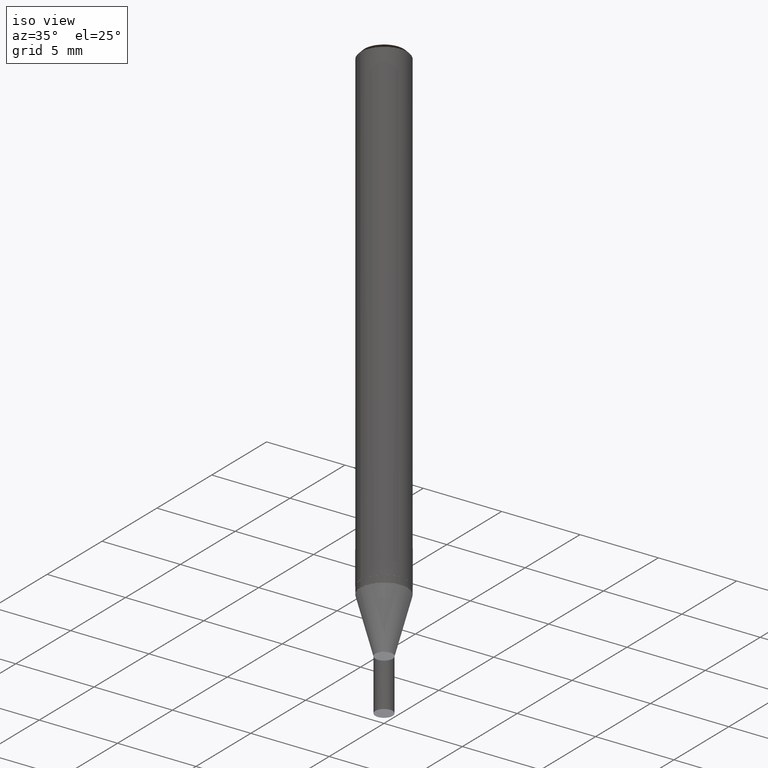
[diagram: clean part render]
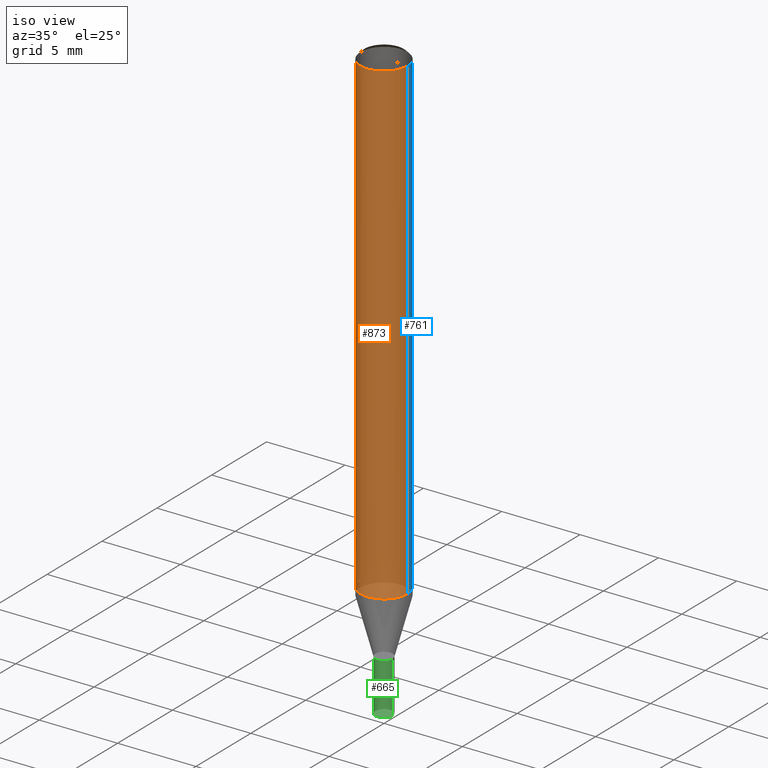
[diagram: same view with three faces highlighted in distinct colors, each labeled with its STEP entity id]
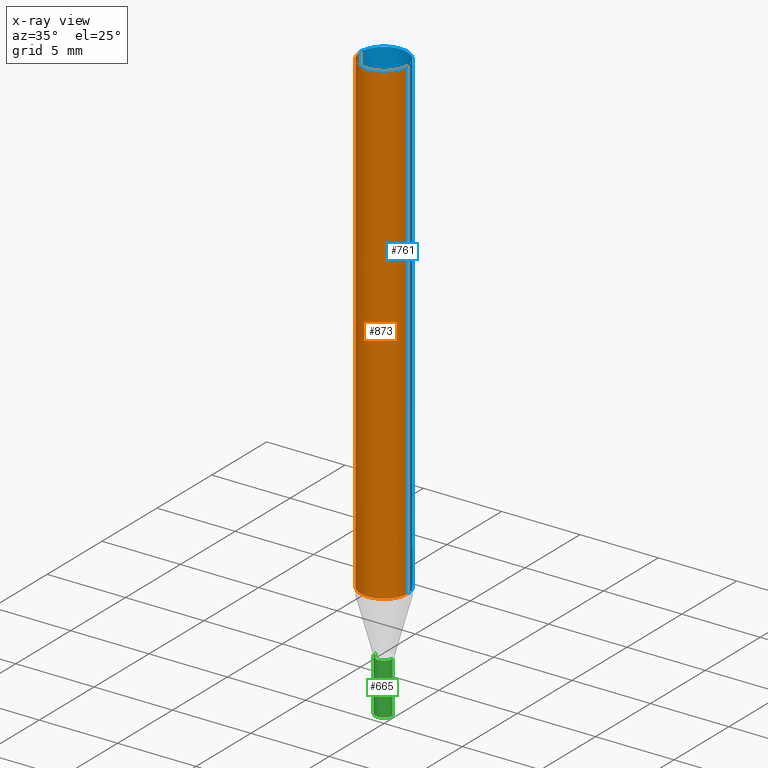
[diagram: x-ray of the same camera — body ghosted, the three highlighted faces saturated]
A machine part, iso view with three faces highlighted in distinct colors.
The next image is the same camera in x-ray (body ghosted, the three faces saturated) — at least one of them is partly hidden behind the body in this view.
Their STEP definitions:

[orange] entity #873 — the highlighted face is a freeform B-spline surface patch.
#543=CARTESIAN_POINT('',(1.5,0.0,-0.0));
#547=CARTESIAN_POINT('',(-1.5,0.0,-0.0));
#548=CARTESIAN_POINT('',(1.5,0.0,30.45));
#552=CARTESIAN_POINT('',(-1.5,0.0,30.45));
#562=CARTESIAN_POINT('',(-1.5,-1.5,-0.0));
#563=CARTESIAN_POINT('',(0.0,-1.5,-0.0));
#564=CARTESIAN_POINT('',(1.5,-1.5,-0.0));
#565=CARTESIAN_POINT('',(-1.5,-1.5,30.45));
#566=CARTESIAN_POINT('',(0.0,-1.5,30.45));
#567=CARTESIAN_POINT('',(1.5,-1.5,30.45));
#854=(
BOUNDED_SURFACE()
B_SPLINE_SURFACE(1,2,(
(#547,#562,#563,#564,#543),
(#552,#565,#566,#567,#548)
), .UNSPECIFIED.,.F.,.F.,.F.)
B_SPLINE_SURFACE_WITH_KNOTS((2,2),(3,2,3),(
0.0,1.0),(
0.0,0.5,1.0), .UNSPECIFIED.)
GEOMETRIC_REPRESENTATION_ITEM()
RATIONAL_B_SPLINE_SURFACE(((1.0,0.707106781187,1.0,0.707106781187,1.0),
(1.0,0.707106781187,1.0,0.707106781187,1.0)
))
REPRESENTATION_ITEM('')
SURFACE()
);
#855=(
BOUNDED_CURVE()
B_SPLINE_CURVE(2,(#543,#564,#563,#562,#547),.UNSPECIFIED.,.F.,.F.)
B_SPLINE_CURVE_WITH_KNOTS((3,2,3),
(0.0,0.5,1.0),.UNSPECIFIED.)
CURVE()
GEOMETRIC_REPRESENTATION_ITEM()
RATIONAL_B_SPLINE_CURVE((1.0,0.707106781187,1.0,0.707106781187,1.0))
REPRESENTATION_ITEM('')
);
#856=(
BOUNDED_CURVE()
B_SPLINE_CURVE(1,(#547,#552),.UNSPECIFIED.,.F.,.F.)
B_SPLINE_CURVE_WITH_KNOTS((2,2),
(0.0,1.0),.UNSPECIFIED.)
CURVE()
GEOMETRIC_REPRESENTATION_ITEM()
RATIONAL_B_SPLINE_CURVE((1.0,1.0))
REPRESENTATION_ITEM('')
);
#857=(
BOUNDED_CURVE()
B_SPLINE_CURVE(2,(#552,#565,#566,#567,#548),.UNSPECIFIED.,.F.,.F.)
B_SPLINE_CURVE_WITH_KNOTS((3,2,3),
(0.0,0.5,1.0),.UNSPECIFIED.)
CURVE()
GEOMETRIC_REPRESENTATION_ITEM()
RATIONAL_B_SPLINE_CURVE((1.0,0.707106781187,1.0,0.707106781187,1.0))
REPRESENTATION_ITEM('')
);
#858=(
BOUNDED_CURVE()
B_SPLINE_CURVE(1,(#548,#543),.UNSPECIFIED.,.F.,.F.)
B_SPLINE_CURVE_WITH_KNOTS((2,2),
(0.0,1.0),.UNSPECIFIED.)
CURVE()
GEOMETRIC_REPRESENTATION_ITEM()
RATIONAL_B_SPLINE_CURVE((1.0,1.0))
REPRESENTATION_ITEM('')
);
#859=VERTEX_POINT('',#543);
#860=VERTEX_POINT('',#547);
#861=VERTEX_POINT('',#548);
#862=VERTEX_POINT('',#552);
#863=EDGE_CURVE('',#859,#860,#855,.T.);
#864=EDGE_CURVE('',#860,#862,#856,.T.);
#865=EDGE_CURVE('',#862,#861,#857,.T.);
#866=EDGE_CURVE('',#861,#859,#858,.T.);
#867=ORIENTED_EDGE('',*,*,#863,.T.);
#868=ORIENTED_EDGE('',*,*,#864,.T.);
#869=ORIENTED_EDGE('',*,*,#865,.T.);
#870=ORIENTED_EDGE('',*,*,#866,.T.);
#871=EDGE_LOOP('',(#867,#868,#869,#870));
#872=FACE_OUTER_BOUND('',#871,.T.);
#873=ADVANCED_FACE('',(#872),#854,.T.);

[blue] entity #761 — the highlighted face is a freeform B-spline surface patch.
#543=CARTESIAN_POINT('',(1.5,0.0,-0.0));
#544=CARTESIAN_POINT('',(1.5,1.5,-0.0));
#545=CARTESIAN_POINT('',(0.0,1.5,-0.0));
#546=CARTESIAN_POINT('',(-1.5,1.5,-0.0));
#547=CARTESIAN_POINT('',(-1.5,0.0,-0.0));
#548=CARTESIAN_POINT('',(1.5,0.0,30.45));
#549=CARTESIAN_POINT('',(1.5,1.5,30.45));
#550=CARTESIAN_POINT('',(0.0,1.5,30.45));
#551=CARTESIAN_POINT('',(-1.5,1.5,30.45));
#552=CARTESIAN_POINT('',(-1.5,0.0,30.45));
#742=(
BOUNDED_SURFACE()
B_SPLINE_SURFACE(1,2,(
(#543,#544,#545,#546,#547),
(#548,#549,#550,#551,#552)
), .UNSPECIFIED.,.F.,.F.,.F.)
B_SPLINE_SURFACE_WITH_KNOTS((2,2),(3,2,3),(
0.0,1.0),(
0.0,0.5,1.0), .UNSPECIFIED.)
GEOMETRIC_REPRESENTATION_ITEM()
RATIONAL_B_SPLINE_SURFACE(((1.0,0.707106781187,1.0,0.707106781187,1.0),
(1.0,0.707106781187,1.0,0.707106781187,1.0)
))
REPRESENTATION_ITEM('')
SURFACE()
);
#743=(
BOUNDED_CURVE()
B_SPLINE_CURVE(2,(#547,#546,#545,#544,#543),.UNSPECIFIED.,.F.,.F.)
B_SPLINE_CURVE_WITH_KNOTS((3,2,3),
(0.0,0.5,1.0),.UNSPECIFIED.)
CURVE()
GEOMETRIC_REPRESENTATION_ITEM()
RATIONAL_B_SPLINE_CURVE((1.0,0.707106781187,1.0,0.707106781187,1.0))
REPRESENTATION_ITEM('')
);
#744=(
BOUNDED_CURVE()
B_SPLINE_CURVE(1,(#543,#548),.UNSPECIFIED.,.F.,.F.)
B_SPLINE_CURVE_WITH_KNOTS((2,2),
(0.0,1.0),.UNSPECIFIED.)
CURVE()
GEOMETRIC_REPRESENTATION_ITEM()
RATIONAL_B_SPLINE_CURVE((1.0,1.0))
REPRESENTATION_ITEM('')
);
#745=(
BOUNDED_CURVE()
B_SPLINE_CURVE(2,(#548,#549,#550,#551,#552),.UNSPECIFIED.,.F.,.F.)
B_SPLINE_CURVE_WITH_KNOTS((3,2,3),
(0.0,0.5,1.0),.UNSPECIFIED.)
CURVE()
GEOMETRIC_REPRESENTATION_ITEM()
RATIONAL_B_SPLINE_CURVE((1.0,0.707106781187,1.0,0.707106781187,1.0))
REPRESENTATION_ITEM('')
);
#746=(
BOUNDED_CURVE()
B_SPLINE_CURVE(1,(#552,#547),.UNSPECIFIED.,.F.,.F.)
B_SPLINE_CURVE_WITH_KNOTS((2,2),
(0.0,1.0),.UNSPECIFIED.)
CURVE()
GEOMETRIC_REPRESENTATION_ITEM()
RATIONAL_B_SPLINE_CURVE((1.0,1.0))
REPRESENTATION_ITEM('')
);
#747=VERTEX_POINT('',#543);
#748=VERTEX_POINT('',#547);
#749=VERTEX_POINT('',#548);
#750=VERTEX_POINT('',#552);
#751=EDGE_CURVE('',#748,#747,#743,.T.);
#752=EDGE_CURVE('',#747,#749,#744,.T.);
#753=EDGE_CURVE('',#749,#750,#745,.T.);
#754=EDGE_CURVE('',#750,#748,#746,.T.);
#755=ORIENTED_EDGE('',*,*,#751,.T.);
#756=ORIENTED_EDGE('',*,*,#752,.T.);
#757=ORIENTED_EDGE('',*,*,#753,.T.);
#758=ORIENTED_EDGE('',*,*,#754,.T.);
#759=EDGE_LOOP('',(#755,#756,#757,#758));
#760=FACE_OUTER_BOUND('',#759,.T.);
#761=ADVANCED_FACE('',(#760),#742,.T.);

[green] entity #665 — the highlighted face is a freeform B-spline surface patch.
#521=CARTESIAN_POINT('',(0.55,0.0,-7.3));
#525=CARTESIAN_POINT('',(-0.55,0.0,-7.3));
#526=CARTESIAN_POINT('',(0.55,0.0,-4.0));
#530=CARTESIAN_POINT('',(-0.55,0.0,-4.0));
#532=CARTESIAN_POINT('',(-0.55,-0.55,-7.3));
#533=CARTESIAN_POINT('',(0.0,-0.55,-7.3));
#534=CARTESIAN_POINT('',(0.55,-0.55,-7.3));
#535=CARTESIAN_POINT('',(-0.55,-0.55,-4.0));
#536=CARTESIAN_POINT('',(0.0,-0.55,-4.0));
#537=CARTESIAN_POINT('',(0.55,-0.55,-4.0));
#646=(
BOUNDED_SURFACE()
B_SPLINE_SURFACE(1,2,(
(#525,#532,#533,#534,#521),
(#530,#535,#536,#537,#526)
), .UNSPECIFIED.,.F.,.F.,.F.)
B_SPLINE_SURFACE_WITH_KNOTS((2,2),(3,2,3),(
0.0,1.0),(
0.0,0.5,1.0), .UNSPECIFIED.)
GEOMETRIC_REPRESENTATION_ITEM()
RATIONAL_B_SPLINE_SURFACE(((1.0,0.707106781187,1.0,0.707106781187,1.0),
(1.0,0.707106781187,1.0,0.707106781187,1.0)
))
REPRESENTATION_ITEM('')
SURFACE()
);
#647=(
BOUNDED_CURVE()
B_SPLINE_CURVE(2,(#521,#534,#533,#532,#525),.UNSPECIFIED.,.F.,.F.)
B_SPLINE_CURVE_WITH_KNOTS((3,2,3),
(0.0,0.5,1.0),.UNSPECIFIED.)
CURVE()
GEOMETRIC_REPRESENTATION_ITEM()
RATIONAL_B_SPLINE_CURVE((1.0,0.707106781187,1.0,0.707106781187,1.0))
REPRESENTATION_ITEM('')
);
#648=(
BOUNDED_CURVE()
B_SPLINE_CURVE(1,(#525,#530),.UNSPECIFIED.,.F.,.F.)
B_SPLINE_CURVE_WITH_KNOTS((2,2),
(0.0,1.0),.UNSPECIFIED.)
CURVE()
GEOMETRIC_REPRESENTATION_ITEM()
RATIONAL_B_SPLINE_CURVE((1.0,1.0))
REPRESENTATION_ITEM('')
);
#649=(
BOUNDED_CURVE()
B_SPLINE_CURVE(2,(#530,#535,#536,#537,#526),.UNSPECIFIED.,.F.,.F.)
B_SPLINE_CURVE_WITH_KNOTS((3,2,3),
(0.0,0.5,1.0),.UNSPECIFIED.)
CURVE()
GEOMETRIC_REPRESENTATION_ITEM()
RATIONAL_B_SPLINE_CURVE((1.0,0.707106781187,1.0,0.707106781187,1.0))
REPRESENTATION_ITEM('')
);
#650=(
BOUNDED_CURVE()
B_SPLINE_CURVE(1,(#526,#521),.UNSPECIFIED.,.F.,.F.)
B_SPLINE_CURVE_WITH_KNOTS((2,2),
(0.0,1.0),.UNSPECIFIED.)
CURVE()
GEOMETRIC_REPRESENTATION_ITEM()
RATIONAL_B_SPLINE_CURVE((1.0,1.0))
REPRESENTATION_ITEM('')
);
#651=VERTEX_POINT('',#521);
#652=VERTEX_POINT('',#525);
#653=VERTEX_POINT('',#526);
#654=VERTEX_POINT('',#530);
#655=EDGE_CURVE('',#651,#652,#647,.T.);
#656=EDGE_CURVE('',#652,#654,#648,.T.);
#657=EDGE_CURVE('',#654,#653,#649,.T.);
#658=EDGE_CURVE('',#653,#651,#650,.T.);
#659=ORIENTED_EDGE('',*,*,#655,.T.);
#660=ORIENTED_EDGE('',*,*,#656,.T.);
#661=ORIENTED_EDGE('',*,*,#657,.T.);
#662=ORIENTED_EDGE('',*,*,#658,.T.);
#663=EDGE_LOOP('',(#659,#660,#661,#662));
#664=FACE_OUTER_BOUND('',#663,.T.);
#665=ADVANCED_FACE('',(#664),#646,.T.);